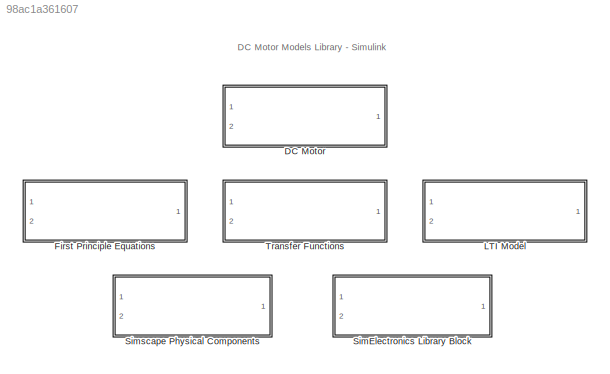
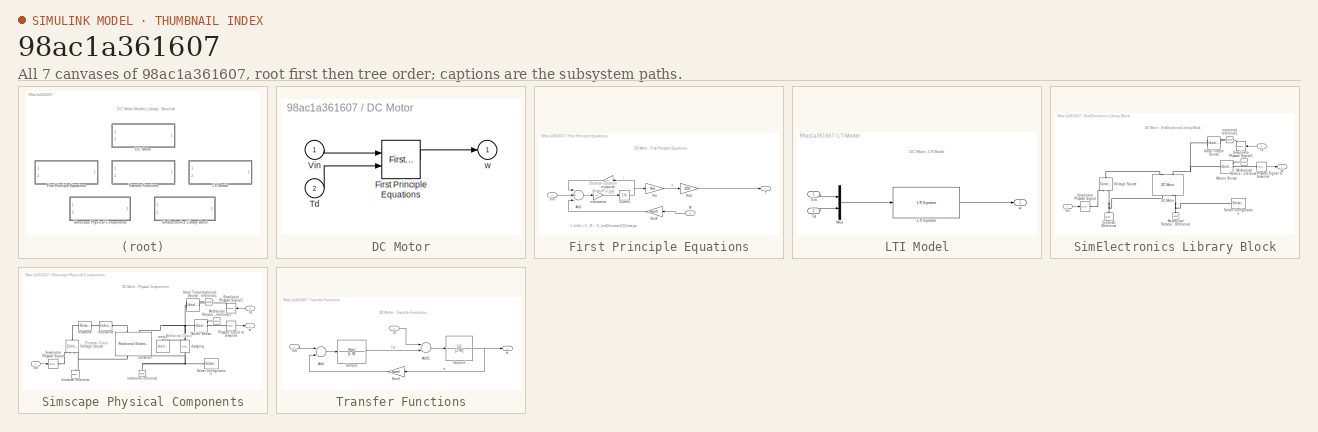
[diagram: thumbnail index - all 7 canvases of the model, root first then tree order]
MODEL slx_98ac1a361607
KIND library
BLOCK [SubSystem] DC Motor
  BlockChoice = First Principle Equations
  MemberBlocks = First Principle Equations,LTI Model,SimElectronics Library Block,Simscape Physical Components,Transfer Functions
  Ports = [2, 1]
  RequestExecContextInheritance = off
  TemplateBlock = self
BLOCK [Reference] DC Motor/First Principle Equations  REF=SLDCMotors_Lib/First Principle Equations
  J = 0.01
  Kemf = 0.1
  Km = 0.01
  L = 0.5
  Ports = [2, 1]
  R = 1
  SourceBlock = SLDCMotors_Lib/First Principle Equations
  SourceType = DC Motor - First Principles
BLOCK [Inport] DC Motor/Td
  IconDisplay = Port number
  Port = 2
BLOCK [Inport] DC Motor/Vin
  IconDisplay = Port number
BLOCK [Outport] DC Motor/w
  IconDisplay = Port number
BLOCK [SubSystem] First Principle Equations
  Ports = [2, 1]
  RequestExecContextInheritance = off
BLOCK [Sum] First Principle Equations/Add
  InputSameDT = off
  Inputs = -+-
  OutDataTypeStr = Inherit: Inherit via internal rule
  Ports = [3, 1]
  SaturateOnIntegerOverflow = off
BLOCK [Integrator] First Principle Equations/Current
  Ports = [1, 1]
BLOCK [Gain] First Principle Equations/Kemf
  Gain = Kemf
  OutDataTypeStr = Inherit: Inherit via internal rule
  ParamDataTypeStr = Inherit: Inherit via internal rule
  SaturateOnIntegerOverflow = off
BLOCK [Gain] First Principle Equations/Km
  Gain = Km
  OutDataTypeStr = Inherit: Inherit via internal rule
  ParamDataTypeStr = Inherit: Inherit via internal rule
  SaturateOnIntegerOverflow = off
BLOCK [Gain] First Principle Equations/Km1
  Gain = 200
  OutDataTypeStr = Inherit: Inherit via internal rule
  ParamDataTypeStr = Inherit: Inherit via internal rule
  SaturateOnIntegerOverflow = off
BLOCK [Outport] First Principle Equations/T
  IconDisplay = Port number
BLOCK [Inport] First Principle Equations/Vin
  IconDisplay = Port number
BLOCK [Inport] First Principle Equations/W
  IconDisplay = Port number
  Port = 2
BLOCK [Gain] First Principle Equations/inductance
  Gain = 1/L
  OutDataTypeStr = Inherit: Inherit via internal rule
  ParamDataTypeStr = Inherit: Inherit via internal rule
  SaturateOnIntegerOverflow = off
BLOCK [Gain] First Principle Equations/resistance
  Gain = R
  OutDataTypeStr = Inherit: Inherit via internal rule
  ParamDataTypeStr = Inherit: Inherit via internal rule
  SaturateOnIntegerOverflow = off
BLOCK [SubSystem] LTI Model
  Ports = [2, 1]
  RequestExecContextInheritance = off
BLOCK [Reference] LTI Model/LTI System  REF=cstblocks/LTI System
  IC = []
  Ports = [1, 1]
  SourceBlock = cstblocks/LTI System
  SourceType = LTI Block
  sys = Gdc_motor
BLOCK [Mux] LTI Model/Mux
  DisplayOption = bar
  Inputs = 2
  Ports = [2, 1]
BLOCK [Inport] LTI Model/Td
  IconDisplay = Port number
  Port = 2
BLOCK [Inport] LTI Model/Vin
  IconDisplay = Port number
BLOCK [Outport] LTI Model/w
  IconDisplay = Port number
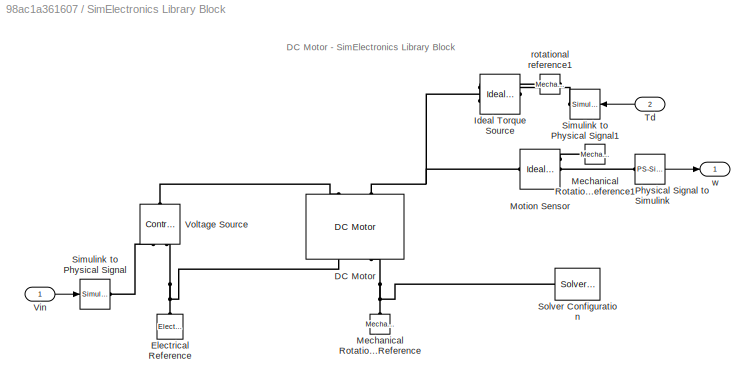
BLOCK [SubSystem] SimElectronics Library Block
  Ports = [2, 1]
  RequestExecContextInheritance = off
BLOCK [Reference] SimElectronics Library Block/DC Motor  REF=elec_lib/Actuators & Drivers/Rotational Actuators/DC Motor
  ClassName = dc_motor
  ComponentPath = elec.actuators.rotational.dc_motor
  ComponentVariantNames = No thermal port, Show thermal port
  ComponentVariants = elec.actuators.rotational.dc_motor, elec.actuators.rotational.dc_motor_thermal
  J = J
  J_unit = kg*m^2
  Ki = Km
  Ki_unit = N*m/A
  Kv = 7.2e-05
  Kv_unit = V/rpm
  La = L
  La_unit = H
  LogSimulationData = off
  P_rated = 0.08
  P_rated_unit = W
  Ports = [0, 0, 0, 0, 0, 2, 2]
  Ra = R
  Ra_unit = Ohm
  SchemaVersion = 1
  SourceBlock = elec_lib/Actuators & Drivers/Rotational Actuators/DC Motor
  SourceFile = elec.actuators.rotational.dc_motor
  SourceType = DC Motor
  T_stall = 2.4e-04
  T_stall_unit = N*m
  Tmeas = 25
  Tmeas_unit = C
  V_i_noload = 1.5
  V_i_noload_unit = V
  V_rated = 1.5
  V_rated_unit = V
  alpha = 0.00393
  alpha_unit = 1/K
  emf_or_torque = 2
  emf_or_torque_unit = 1
  i_noload = 0
  i_noload_unit = A
  initial_temperature = 25
  initial_temperature_unit = C
  lam = Kf
  lam_param = 1
  lam_param_unit = 1
  lam_unit = N*m/(rad/s)
  parameterization = 1
  parameterization_unit = 1
  speed0 = 0
  speed0_unit = rpm
  thermal_mass = 100
  thermal_mass_unit = J/K
  w_max = 1.91e+04
  w_max_unit = rpm
  w_rated = 1.5e+04
  w_rated_unit = rpm
BLOCK [Reference] SimElectronics Library Block/Electrical Reference  REF=fl_lib/Electrical/Electrical Elements/Electrical Reference
  ClassName = reference_electrical
  ComponentPath = foundation.electrical.elements.reference
  ComponentVariantNames = reference
  ComponentVariants = foundation.electrical.elements.reference
  LogSimulationData = off
  Ports = [0, 0, 0, 0, 0, 1]
  SchemaVersion = 1
  SourceBlock = fl_lib/Electrical/Electrical Elements/Electrical Reference
  SourceFile = foundation.electrical.elements.reference
  SourceType = Electrical Reference
BLOCK [Reference] SimElectronics Library Block/Ideal Torque Source  REF=fl_lib/Mechanical/Mechanical Sources/Ideal Torque Source
  ClassName = torque
  ComponentPath = foundation.mechanical.sources.torque
  ComponentVariantNames = torque
  ComponentVariants = foundation.mechanical.sources.torque
  LogSimulationData = off
  Ports = [0, 0, 0, 0, 0, 1, 2]
  SchemaVersion = 1
  SourceBlock = fl_lib/Mechanical/Mechanical Sources/Ideal Torque Source
  SourceFile = foundation.mechanical.sources.torque
  SourceType = Ideal Torque Source
BLOCK [Reference] SimElectronics Library Block/Mechanical Rotational Reference  REF=fl_lib/Mechanical/Rotational Elements/Mechanical
Rotational Reference
  ClassName = reference_rot
  ComponentPath = foundation.mechanical.rotational.reference
  ComponentVariantNames = reference
  ComponentVariants = foundation.mechanical.rotational.reference
  LogSimulationData = off
  Ports = [0, 0, 0, 0, 0, 1]
  SchemaVersion = 1
  SourceBlock = fl_lib/Mechanical/Rotational Elements/Mechanical\nRotational Reference
  SourceFile = foundation.mechanical.rotational.reference
  SourceType = Mechanical\nRotational Reference
BLOCK [Reference] SimElectronics Library Block/Mechanical Rotational Reference1  REF=fl_lib/Mechanical/Rotational Elements/Mechanical
Rotational Reference
  ClassName = reference_rot
  ComponentPath = foundation.mechanical.rotational.reference
  ComponentVariantNames = reference
  ComponentVariants = foundation.mechanical.rotational.reference
  LogSimulationData = off
  Ports = [0, 0, 0, 0, 0, 1]
  SchemaVersion = 1
  SourceBlock = fl_lib/Mechanical/Rotational Elements/Mechanical\nRotational Reference
  SourceFile = foundation.mechanical.rotational.reference
  SourceType = Mechanical\nRotational Reference
BLOCK [Reference] SimElectronics Library Block/Motion Sensor  REF=fl_lib/Mechanical/Mechanical Sensors/Ideal Rotational
Motion Sensor
  ClassName = sensor_rot_motion
  ComponentPath = foundation.mechanical.sensors.angular_velocity
  ComponentVariantNames = angular_velocity
  ComponentVariants = foundation.mechanical.sensors.angular_velocity
  LogSimulationData = off
  Ports = [0, 0, 0, 0, 0, 1, 3]
  SchemaVersion = 1
  SourceBlock = fl_lib/Mechanical/Mechanical Sensors/Ideal Rotational\nMotion Sensor
  SourceFile = foundation.mechanical.sensors.angular_velocity
  SourceType = Ideal Rotational\nMotion Sensor
  offset = 0
  offset_unit = rad
BLOCK [Reference] SimElectronics Library Block/Physical Signal to Simulink  REF=nesl_utility/PS-Simulink
Converter
  AffineConversion = off
  Frequencies = []
  LeftPortType = input
  PhysicalDomain = network_engine_domain
  Ports = [0, 1, 0, 0, 0, 1]
  PseudoPeriodic = off
  RightPortType = output
  SourceBlock = nesl_utility/PS-Simulink\nConverter
  SourceType = PS-Simulink\nConverter
  SubClassName = ps_output
  Unit = rad/s
BLOCK [Reference] SimElectronics Library Block/Simulink to Physical Signal  REF=nesl_utility/Simulink-PS
Converter
  AffineConversion = off
  Frequencies = []
  InputFilterTimeConstant = .001
  InputFiltering = off
  LeftPortType = input
  NoiseDistribution = none
  NoiseParameters = []
  PhysicalDomain = network_engine_domain
  Ports = [1, 0, 0, 0, 0, 0, 1]
  PseudoPeriodic = off
  RightPortType = output
  SimscapeFilterOrder = 1
  SourceBlock = nesl_utility/Simulink-PS\nConverter
  SourceType = Simulink-PS\nConverter
  SubClassName = ps_input
  UdotUserProvided = 0
  Unit = V
BLOCK [Reference] SimElectronics Library Block/Simulink to Physical Signal1  REF=nesl_utility/Simulink-PS
Converter
  AffineConversion = off
  Frequencies = []
  InputFilterTimeConstant = .001
  InputFiltering = off
  LeftPortType = input
  NoiseDistribution = none
  NoiseParameters = []
  PhysicalDomain = network_engine_domain
  Ports = [1, 0, 0, 0, 0, 0, 1]
  PseudoPeriodic = off
  RightPortType = output
  SimscapeFilterOrder = 1
  SourceBlock = nesl_utility/Simulink-PS\nConverter
  SourceType = Simulink-PS\nConverter
  SubClassName = ps_input
  UdotUserProvided = 0
  Unit = 1
BLOCK [Reference] SimElectronics Library Block/Solver Configuration  REF=nesl_utility/Solver
Configuration
  AbsTol = 1e-06
  Accelerate = off
  AutomaticFiltering = on
  DelaysMemoryBudget = 1024
  DoDC = off
  DoFixedCost = off
  EnableSwitchedLinearOptims = on
  FilteringTimeConstant = 0.001
  FrequencyDomain = off
  Harmonics = []
  LeftPortType = input
  LinearAlgebra = Sparse
  LocalSolverChoice = NE_BACKWARD_EULER_ADVANCER
  LocalSolverSampleTime = .001
  MaxModeIter = 2
  MaxNonlinIter = 12
  MinStep = 1e-09
  PhysicalDomain = network_engine_domain
  Ports = [0, 0, 0, 0, 0, 0, 1]
  Profile = off
  RelTol = 0.001
  ResidualTolerance = 1e-9
  RightPortType = generic
  SimulateNoise = off
  SourceBlock = nesl_utility/Solver\nConfiguration
  SourceType = Solver\nConfiguration
  SubClassName = solver
  ToWorkspace = off
  Tones = []
  UseCCode = off
  UseLocalSampling = off
  UseLocalSolver = off
BLOCK [Inport] SimElectronics Library Block/Td
  IconDisplay = Port number
  Port = 2
BLOCK [Inport] SimElectronics Library Block/Vin
  IconDisplay = Port number
BLOCK [Reference] SimElectronics Library Block/Voltage Source  REF=fl_lib/Electrical/Electrical Sources/Controlled Voltage
Source
  ClassName = controlled_voltage_source
  ComponentPath = foundation.electrical.sources.controlled_voltage
  ComponentVariantNames = controlled_voltage
  ComponentVariants = foundation.electrical.sources.controlled_voltage
  LogSimulationData = off
  Ports = [0, 0, 0, 0, 0, 1, 2]
  SchemaVersion = 1
  SourceBlock = fl_lib/Electrical/Electrical Sources/Controlled Voltage\nSource
  SourceFile = foundation.electrical.sources.controlled_voltage
  SourceType = Controlled Voltage\nSource
BLOCK [Reference] SimElectronics Library Block/rotational reference1  REF=fl_lib/Mechanical/Rotational Elements/Mechanical
Rotational Reference
  ClassName = reference_rot
  ComponentPath = foundation.mechanical.rotational.reference
  ComponentVariantNames = reference
  ComponentVariants = foundation.mechanical.rotational.reference
  LogSimulationData = off
  Ports = [0, 0, 0, 0, 0, 1]
  SchemaVersion = 1
  SourceBlock = fl_lib/Mechanical/Rotational Elements/Mechanical\nRotational Reference
  SourceFile = foundation.mechanical.rotational.reference
  SourceType = Mechanical\nRotational Reference
BLOCK [Outport] SimElectronics Library Block/w
  IconDisplay = Port number
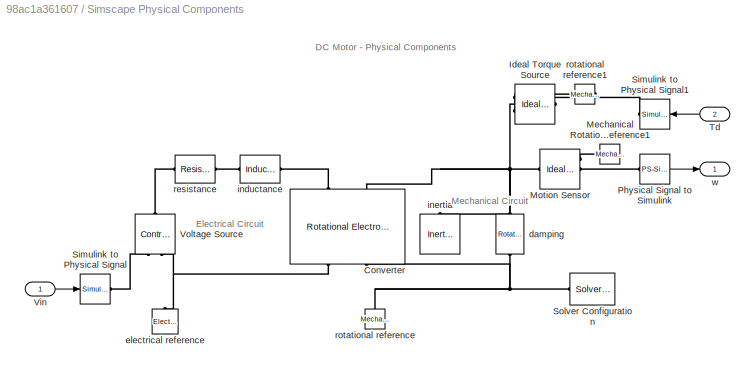
BLOCK [SubSystem] Simscape Physical Components
  Ports = [2, 1]
  RequestExecContextInheritance = off
BLOCK [Reference] Simscape Physical Components/Converter  REF=fl_lib/Electrical/Electrical Elements/Rotational
Electromechanical
Converter
  ClassName = rotational_converter
  ComponentPath = foundation.electrical.elements.rotational_converter
  ComponentVariantNames = rotational_converter
  ComponentVariants = foundation.electrical.elements.rotational_converter
  K = Km
  K_unit = V/(rad/s)
  LogSimulationData = off
  Ports = [0, 0, 0, 0, 0, 2, 2]
  SchemaVersion = 1
  SourceBlock = fl_lib/Electrical/Electrical Elements/Rotational\nElectromechanical\nConverter
  SourceFile = foundation.electrical.elements.rotational_converter
  SourceType = Rotational\nElectromechanical\nConverter
  i = 0
  i_priority = High
  i_specify = off
  i_unit = A
  t = 0
  t_priority = High
  t_specify = off
  t_unit = N*m
  v = 0
  v_priority = High
  v_specify = off
  v_unit = V
  w = 0
  w_priority = High
  w_specify = off
  w_unit = rad/s
BLOCK [Reference] Simscape Physical Components/Ideal Torque Source  REF=fl_lib/Mechanical/Mechanical Sources/Ideal Torque Source
  ClassName = torque
  ComponentPath = foundation.mechanical.sources.torque
  ComponentVariantNames = torque
  ComponentVariants = foundation.mechanical.sources.torque
  LogSimulationData = off
  Ports = [0, 0, 0, 0, 0, 1, 2]
  SchemaVersion = 1
  SourceBlock = fl_lib/Mechanical/Mechanical Sources/Ideal Torque Source
  SourceFile = foundation.mechanical.sources.torque
  SourceType = Ideal Torque Source
BLOCK [Reference] Simscape Physical Components/Mechanical Rotational Reference1  REF=fl_lib/Mechanical/Rotational Elements/Mechanical
Rotational Reference
  ClassName = reference_rot
  ComponentPath = foundation.mechanical.rotational.reference
  ComponentVariantNames = reference
  ComponentVariants = foundation.mechanical.rotational.reference
  LogSimulationData = off
  Ports = [0, 0, 0, 0, 0, 1]
  SchemaVersion = 1
  SourceBlock = fl_lib/Mechanical/Rotational Elements/Mechanical\nRotational Reference
  SourceFile = foundation.mechanical.rotational.reference
  SourceType = Mechanical\nRotational Reference
BLOCK [Reference] Simscape Physical Components/Motion Sensor  REF=fl_lib/Mechanical/Mechanical Sensors/Ideal Rotational
Motion Sensor
  ClassName = sensor_rot_motion
  ComponentPath = foundation.mechanical.sensors.angular_velocity
  ComponentVariantNames = angular_velocity
  ComponentVariants = foundation.mechanical.sensors.angular_velocity
  LogSimulationData = off
  Ports = [0, 0, 0, 0, 0, 1, 3]
  SchemaVersion = 1
  SourceBlock = fl_lib/Mechanical/Mechanical Sensors/Ideal Rotational\nMotion Sensor
  SourceFile = foundation.mechanical.sensors.angular_velocity
  SourceType = Ideal Rotational\nMotion Sensor
  offset = 0
  offset_unit = rad
BLOCK [Reference] Simscape Physical Components/Physical Signal to Simulink  REF=nesl_utility/PS-Simulink
Converter
  AffineConversion = off
  Frequencies = []
  LeftPortType = input
  PhysicalDomain = network_engine_domain
  Ports = [0, 1, 0, 0, 0, 1]
  PseudoPeriodic = off
  RightPortType = output
  SourceBlock = nesl_utility/PS-Simulink\nConverter
  SourceType = PS-Simulink\nConverter
  SubClassName = ps_output
  Unit = rad/s
BLOCK [Reference] Simscape Physical Components/Simulink to Physical Signal  REF=nesl_utility/Simulink-PS
Converter
  AffineConversion = off
  Frequencies = []
  InputFilterTimeConstant = .001
  InputFiltering = off
  LeftPortType = input
  NoiseDistribution = none
  NoiseParameters = []
  PhysicalDomain = network_engine_domain
  Ports = [1, 0, 0, 0, 0, 0, 1]
  PseudoPeriodic = off
  RightPortType = output
  SimscapeFilterOrder = 1
  SourceBlock = nesl_utility/Simulink-PS\nConverter
  SourceType = Simulink-PS\nConverter
  SubClassName = ps_input
  UdotUserProvided = 0
  Unit = V
BLOCK [Reference] Simscape Physical Components/Simulink to Physical Signal1  REF=nesl_utility/Simulink-PS
Converter
  AffineConversion = off
  Frequencies = []
  InputFilterTimeConstant = .001
  InputFiltering = off
  LeftPortType = input
  NoiseDistribution = none
  NoiseParameters = []
  PhysicalDomain = network_engine_domain
  Ports = [1, 0, 0, 0, 0, 0, 1]
  PseudoPeriodic = off
  RightPortType = output
  SimscapeFilterOrder = 1
  SourceBlock = nesl_utility/Simulink-PS\nConverter
  SourceType = Simulink-PS\nConverter
  SubClassName = ps_input
  UdotUserProvided = 0
  Unit = 1
BLOCK [Reference] Simscape Physical Components/Solver Configuration  REF=nesl_utility/Solver
Configuration
  AbsTol = 1e-06
  Accelerate = off
  AutomaticFiltering = on
  DelaysMemoryBudget = 1024
  DoDC = off
  DoFixedCost = off
  EnableSwitchedLinearOptims = on
  FilteringTimeConstant = 0.001
  FrequencyDomain = off
  Harmonics = []
  LeftPortType = input
  LinearAlgebra = Sparse
  LocalSolverChoice = NE_BACKWARD_EULER_ADVANCER
  LocalSolverSampleTime = .001
  MaxModeIter = 2
  MaxNonlinIter = 12
  MinStep = 1e-09
  PhysicalDomain = network_engine_domain
  Ports = [0, 0, 0, 0, 0, 0, 1]
  Profile = off
  RelTol = 0.001
  ResidualTolerance = 1e-9
  RightPortType = generic
  SimulateNoise = off
  SourceBlock = nesl_utility/Solver\nConfiguration
  SourceType = Solver\nConfiguration
  SubClassName = solver
  ToWorkspace = off
  Tones = []
  UseCCode = off
  UseLocalSampling = off
  UseLocalSolver = off
BLOCK [Inport] Simscape Physical Components/Td
  IconDisplay = Port number
  Port = 2
BLOCK [Inport] Simscape Physical Components/Vin
  IconDisplay = Port number
BLOCK [Reference] Simscape Physical Components/Voltage Source  REF=fl_lib/Electrical/Electrical Sources/Controlled Voltage
Source
  ClassName = controlled_voltage_source
  ComponentPath = foundation.electrical.sources.controlled_voltage
  ComponentVariantNames = controlled_voltage
  ComponentVariants = foundation.electrical.sources.controlled_voltage
  LogSimulationData = off
  Ports = [0, 0, 0, 0, 0, 1, 2]
  SchemaVersion = 1
  SourceBlock = fl_lib/Electrical/Electrical Sources/Controlled Voltage\nSource
  SourceFile = foundation.electrical.sources.controlled_voltage
  SourceType = Controlled Voltage\nSource
BLOCK [Reference] Simscape Physical Components/damping  REF=fl_lib/Mechanical/Rotational Elements/Rotational Damper
  ClassName = damper_rot
  ComponentPath = foundation.mechanical.rotational.damper
  ComponentVariantNames = damper
  ComponentVariants = foundation.mechanical.rotational.damper
  D = Kf
  D_unit = N*m/(rad/s)
  LogSimulationData = off
  Ports = [0, 0, 0, 0, 0, 1, 1]
  SchemaVersion = 1
  SourceBlock = fl_lib/Mechanical/Rotational Elements/Rotational Damper
  SourceFile = foundation.mechanical.rotational.damper
  SourceType = Rotational Damper
  t = 0
  t_priority = High
  t_specify = off
  t_unit = N*m
  w = 0
  w_priority = High
  w_specify = off
  w_unit = rad/s
BLOCK [Reference] Simscape Physical Components/electrical reference  REF=fl_lib/Electrical/Electrical Elements/Electrical Reference
  ClassName = reference_electrical
  ComponentPath = foundation.electrical.elements.reference
  ComponentVariantNames = reference
  ComponentVariants = foundation.electrical.elements.reference
  LogSimulationData = off
  Ports = [0, 0, 0, 0, 0, 1]
  SchemaVersion = 1
  SourceBlock = fl_lib/Electrical/Electrical Elements/Electrical Reference
  SourceFile = foundation.electrical.elements.reference
  SourceType = Electrical Reference
BLOCK [Reference] Simscape Physical Components/inductance  REF=fl_lib/Electrical/Electrical Elements/Inductor
  ClassName = inductor
  ComponentPath = foundation.electrical.elements.inductor
  ComponentVariantNames = inductor
  ComponentVariants = foundation.electrical.elements.inductor
  LogSimulationData = off
  Ports = [0, 0, 0, 0, 0, 1, 1]
  SchemaVersion = 1
  SourceBlock = fl_lib/Electrical/Electrical Elements/Inductor
  SourceFile = foundation.electrical.elements.inductor
  SourceType = Inductor
  g = 1e-09
  g_unit = 1/Ohm
  i = 0
  i_L = 0
  i_L_priority = High
  i_L_specify = on
  i_L_unit = A
  i_priority = High
  i_specify = off
  i_unit = A
  l = L
  l_unit = H
  r = 0
  r_unit = Ohm
  v = 0
  v_priority = High
  v_specify = off
  v_unit = V
BLOCK [Reference] Simscape Physical Components/inertia  REF=fl_lib/Mechanical/Rotational Elements/Inertia
  ClassName = inertia
  ComponentPath = foundation.mechanical.rotational.inertia
  ComponentVariantNames = inertia
  ComponentVariants = foundation.mechanical.rotational.inertia
  LogSimulationData = off
  Ports = [0, 0, 0, 0, 0, 1]
  SchemaVersion = 1
  SourceBlock = fl_lib/Mechanical/Rotational Elements/Inertia
  SourceFile = foundation.mechanical.rotational.inertia
  SourceType = Inertia
  inertia = J
  inertia_unit = kg*m^2
  t = 0
  t_priority = High
  t_specify = off
  t_unit = N*m
  w = 0
  w_priority = High
  w_specify = on
  w_unit = rad/s
BLOCK [Reference] Simscape Physical Components/resistance  REF=fl_lib/Electrical/Electrical Elements/Resistor
  ClassName = resistor
  ComponentPath = foundation.electrical.elements.resistor
  ComponentVariantNames = resistor
  ComponentVariants = foundation.electrical.elements.resistor
  LogSimulationData = off
  Ports = [0, 0, 0, 0, 0, 1, 1]
  R = R
  R_unit = Ohm
  SchemaVersion = 1
  SourceBlock = fl_lib/Electrical/Electrical Elements/Resistor
  SourceFile = foundation.electrical.elements.resistor
  SourceType = Resistor
  Tag = Factory Generic
  i = 0
  i_priority = High
  i_specify = off
  i_unit = A
  v = 0
  v_priority = High
  v_specify = off
  v_unit = V
BLOCK [Reference] Simscape Physical Components/rotational reference  REF=fl_lib/Mechanical/Rotational Elements/Mechanical
Rotational Reference
  ClassName = reference_rot
  ComponentPath = foundation.mechanical.rotational.reference
  ComponentVariantNames = reference
  ComponentVariants = foundation.mechanical.rotational.reference
  LogSimulationData = off
  Ports = [0, 0, 0, 0, 0, 1]
  SchemaVersion = 1
  SourceBlock = fl_lib/Mechanical/Rotational Elements/Mechanical\nRotational Reference
  SourceFile = foundation.mechanical.rotational.reference
  SourceType = Mechanical\nRotational Reference
BLOCK [Reference] Simscape Physical Components/rotational reference1  REF=fl_lib/Mechanical/Rotational Elements/Mechanical
Rotational Reference
  ClassName = reference_rot
  ComponentPath = foundation.mechanical.rotational.reference
  ComponentVariantNames = reference
  ComponentVariants = foundation.mechanical.rotational.reference
  LogSimulationData = off
  Ports = [0, 0, 0, 0, 0, 1]
  SchemaVersion = 1
  SourceBlock = fl_lib/Mechanical/Rotational Elements/Mechanical\nRotational Reference
  SourceFile = foundation.mechanical.rotational.reference
  SourceType = Mechanical\nRotational Reference
BLOCK [Outport] Simscape Physical Components/w
  IconDisplay = Port number
BLOCK [SubSystem] Transfer Functions
  Ports = [2, 1]
  RequestExecContextInheritance = off
BLOCK [Sum] Transfer Functions/Add
  InputSameDT = off
  Inputs = +-
  OutDataTypeStr = Inherit: Inherit via internal rule
  Ports = [2, 1]
  SaturateOnIntegerOverflow = off
BLOCK [Sum] Transfer Functions/Add1
  InputSameDT = off
  OutDataTypeStr = Inherit: Inherit via internal rule
  Ports = [2, 1]
  SaturateOnIntegerOverflow = off
BLOCK [TransferFcn] Transfer Functions/Gspeed
  Denominator = [J Kf]
BLOCK [TransferFcn] Transfer Functions/Gtorque
  Denominator = [L R]
  Numerator = [Km]
BLOCK [Gain] Transfer Functions/Kemf
  Gain = Kemf
  OutDataTypeStr = Inherit: Inherit via internal rule
  ParamDataTypeStr = Inherit: Inherit via internal rule
  SaturateOnIntegerOverflow = off
BLOCK [Inport] Transfer Functions/Td
  IconDisplay = Port number
  Port = 2
BLOCK [Inport] Transfer Functions/Vin
  IconDisplay = Port number
BLOCK [Outport] Transfer Functions/w
  IconDisplay = Port number
ANNOTATION (root): DC Motor Models Library - Simulink
ANNOTATION First Principle Equations: DC Motor - First Principle Equations
ANNOTATION First Principle Equations: Electrical Equation (Kirchoff's Law)
ANNOTATION First Principle Equations: L di/dt = V - R i - K_{emf}\fontsize{20}\omega
ANNOTATION LTI Model: DC Motor - LTI Model
ANNOTATION SimElectronics Library Block: DC Motor - SimElectronics Library Block
ANNOTATION Simscape Physical Components: DC Motor - Physical Components
ANNOTATION Simscape Physical Components: Electrical Circuit
ANNOTATION Simscape Physical Components: Mechanical Circuit
ANNOTATION Transfer Functions: Shaft Speed Dynamics
ANNOTATION Transfer Functions: Armature Current Dynamics
ANNOTATION Transfer Functions: DC Motor - Transfer Functions
LINE DC Motor/First Principle Equations:1 -> DC Motor/w:1
LINE DC Motor/Td:1 -> DC Motor/First Principle Equations:2
LINE DC Motor/Vin:1 -> DC Motor/First Principle Equations:1
LINE First Principle Equations/Add:1 -> First Principle Equations/inductance:1
NET First Principle Equations/Current:1 -> First Principle Equations/Km:1, First Principle Equations/resistance:1
LINE First Principle Equations/Kemf:1 -> First Principle Equations/Add:3
LINE First Principle Equations/Km1:1 -> First Principle Equations/T:1
LINE First Principle Equations/Km:1 -> First Principle Equations/Km1:1
LINE First Principle Equations/Vin:1 -> First Principle Equations/Add:2
LINE First Principle Equations/W:1 -> First Principle Equations/Kemf:1
LINE First Principle Equations/inductance:1 -> First Principle Equations/Current:1
LINE First Principle Equations/resistance:1 -> First Principle Equations/Add:1
LINE LTI Model/LTI System:1 -> LTI Model/w:1
LINE LTI Model/Mux:1 -> LTI Model/LTI System:1
LINE LTI Model/Td:1 -> LTI Model/Mux:2
LINE LTI Model/Vin:1 -> LTI Model/Mux:1
LINE SimElectronics Library Block/Physical Signal to Simulink:1 -> SimElectronics Library Block/w:1
LINE SimElectronics Library Block/Td:1 -> SimElectronics Library Block/Simulink to Physical Signal1:1
LINE SimElectronics Library Block/Vin:1 -> SimElectronics Library Block/Simulink to Physical Signal:1
LINE Simscape Physical Components/Physical Signal to Simulink:1 -> Simscape Physical Components/w:1
LINE Simscape Physical Components/Td:1 -> Simscape Physical Components/Simulink to Physical Signal1:1
LINE Simscape Physical Components/Vin:1 -> Simscape Physical Components/Simulink to Physical Signal:1
LINE Transfer Functions/Add1:1 -> Transfer Functions/Gspeed:1
LINE Transfer Functions/Add:1 -> Transfer Functions/Gtorque:1
NET Transfer Functions/Gspeed:1 -> Transfer Functions/Kemf:1, Transfer Functions/w:1
LINE Transfer Functions/Gtorque:1 -> Transfer Functions/Add1:2
LINE Transfer Functions/Kemf:1 -> Transfer Functions/Add:2
LINE Transfer Functions/Td:1 -> Transfer Functions/Add1:1
LINE Transfer Functions/Vin:1 -> Transfer Functions/Add:1
PLINE SimElectronics Library Block/DC Motor:LConn1 -- SimElectronics Library Block/Voltage Source:LConn1
PNET net1: SimElectronics Library Block/DC Motor:LConn2 -- SimElectronics Library Block/Ideal Torque Source:LConn1 -- SimElectronics Library Block/Motion Sensor:LConn1
PNET net2: SimElectronics Library Block/DC Motor:RConn1 -- SimElectronics Library Block/Electrical Reference:LConn1 -- SimElectronics Library Block/Voltage Source:RConn2
PNET net3: SimElectronics Library Block/DC Motor:RConn2 -- SimElectronics Library Block/Mechanical Rotational Reference:LConn1 -- SimElectronics Library Block/Solver Configuration:RConn1
PLINE SimElectronics Library Block/Ideal Torque Source:RConn1 -- SimElectronics Library Block/Simulink to Physical Signal1:RConn1
PLINE SimElectronics Library Block/Ideal Torque Source:RConn2 -- SimElectronics Library Block/rotational reference1:LConn1
PLINE SimElectronics Library Block/Mechanical Rotational Reference1:LConn1 -- SimElectronics Library Block/Motion Sensor:RConn1
PLINE SimElectronics Library Block/Motion Sensor:RConn2 -- SimElectronics Library Block/Physical Signal to Simulink:LConn1
PLINE SimElectronics Library Block/Simulink to Physical Signal:RConn1 -- SimElectronics Library Block/Voltage Source:RConn1
PLINE Simscape Physical Components/Converter:LConn1 -- Simscape Physical Components/inductance:RConn1
PNET net4: Simscape Physical Components/Converter:LConn2 -- Simscape Physical Components/Ideal Torque Source:LConn1 -- Simscape Physical Components/Motion Sensor:LConn1 -- Simscape Physical Components/damping:LConn1 -- Simscape Physical Components/inertia:LConn1
PNET net5: Simscape Physical Components/Converter:RConn1 -- Simscape Physical Components/Voltage Source:RConn2 -- Simscape Physical Components/electrical reference:LConn1
PNET net6: Simscape Physical Components/Converter:RConn2 -- Simscape Physical Components/Solver Configuration:RConn1 -- Simscape Physical Components/damping:RConn1 -- Simscape Physical Components/rotational reference:LConn1
PLINE Simscape Physical Components/Ideal Torque Source:RConn1 -- Simscape Physical Components/Simulink to Physical Signal1:RConn1
PLINE Simscape Physical Components/Ideal Torque Source:RConn2 -- Simscape Physical Components/rotational reference1:LConn1
PLINE Simscape Physical Components/Mechanical Rotational Reference1:LConn1 -- Simscape Physical Components/Motion Sensor:RConn1
PLINE Simscape Physical Components/Motion Sensor:RConn2 -- Simscape Physical Components/Physical Signal to Simulink:LConn1
PLINE Simscape Physical Components/Simulink to Physical Signal:RConn1 -- Simscape Physical Components/Voltage Source:RConn1
PLINE Simscape Physical Components/Voltage Source:LConn1 -- Simscape Physical Components/resistance:LConn1
PLINE Simscape Physical Components/inductance:LConn1 -- Simscape Physical Components/resistance:RConn1
note: NET lines group one-source signal fan-out (src -> all destinations, sorted); 1:1 wires keep LINE; PNET lines group multi-terminal physical nets as a canonical sorted terminal list (undirected conserving connections); 2-terminal nets keep the pairwise PLINE form
